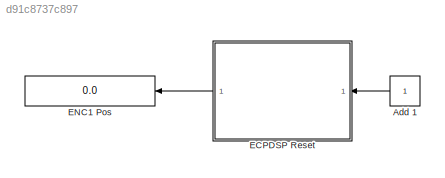
MODEL slx_d91c8737c897
KIND model
CONFIG AbsTol = auto
CONFIG EnableMultiTasking = on
CONFIG FixedStep = auto
CONFIG MaxStep = auto
CONFIG MinStep = auto
CONFIG RelTol = 1e-3
CONFIG SampleTimeConstraint = Unconstrained
CONFIG SolverName = ode1
CONFIG StartTime = 0.0
CONFIG StopTime = 1
BLOCK [Constant] Add 1
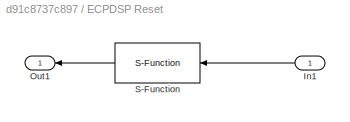
BLOCK [SubSystem] ECPDSP Reset
BLOCK [Inport] ECPDSP Reset/In1
BLOCK [Outport] ECPDSP Reset/Out1
BLOCK [S-Function] ECPDSP Reset/S-Function
  EnableBusSupport = off
  FunctionName = ECPDSPReset
  Parameters = BaseAddr,STime,TimeOutPer,HWAccess
  SFcnIsStateOwnerBlock = off
  SFunctionDeploymentMode = off
BLOCK [Display] ENC1 Pos
  Decimation = 1
  Format = long
LINE Add 1:1 -> ECPDSP Reset:1
LINE ECPDSP Reset/In1:1 -> ECPDSP Reset/S-Function:1
LINE ECPDSP Reset/S-Function:1 -> ECPDSP Reset/Out1:1
LINE ECPDSP Reset:1 -> ENC1 Pos:1
